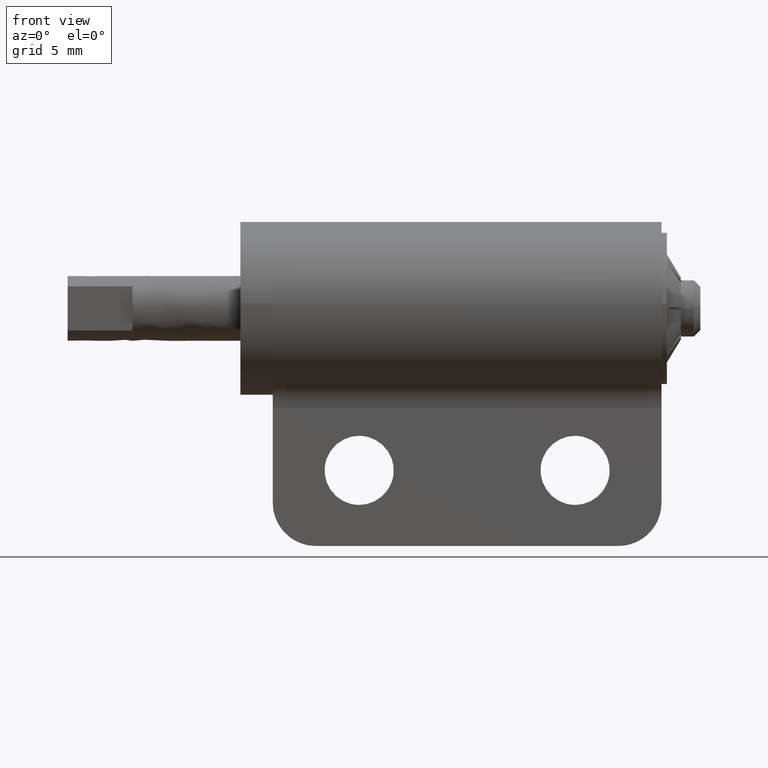
[diagram: clean part render]
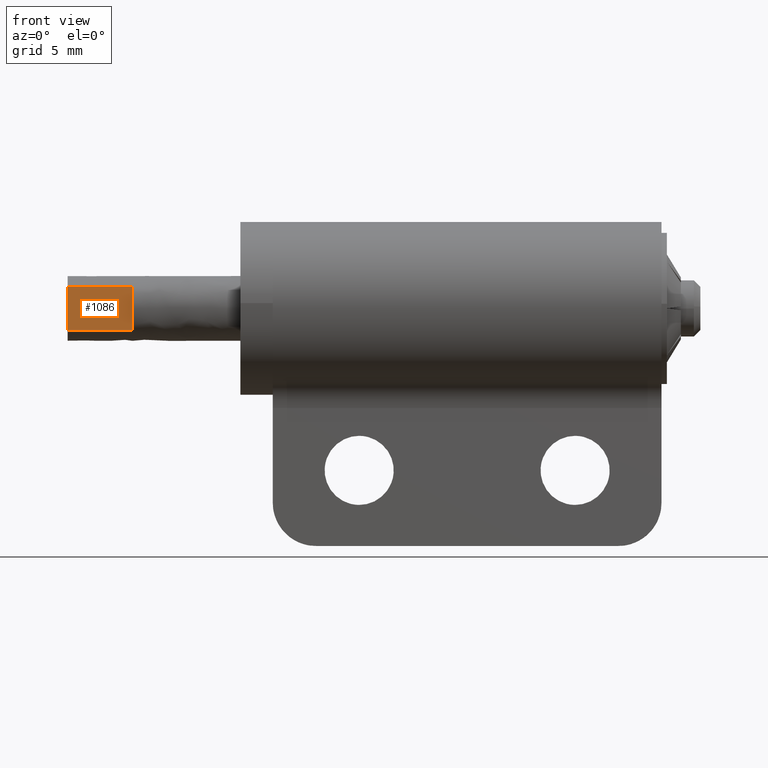
[diagram: same view with one face highlighted and labeled with its STEP entity id]
A machine part, front view. The second image highlights one B-rep face of the part: STEP entity #1086.
In plain terms, the highlighted face is a freeform B-spline surface patch.
Its self-contained STEP definition (entity closure, byte-faithful):
#624=CARTESIAN_POINT('',(3.0,-1.100000000000000,-1.019803902718562));
#625=VERTEX_POINT('',#624);
#641=CARTESIAN_POINT('',(0.0,-1.100000000000000,-1.019803902718562));
#642=VERTEX_POINT('',#641);
#643=CARTESIAN_POINT('',(3.0,-1.100000000000000,-1.019803902718562));
#644=CARTESIAN_POINT('',(0.0,-1.100000000000000,-1.019803902718562));
#645=QUASI_UNIFORM_CURVE('',1,(#643,#644),.UNSPECIFIED.,.F.,.U.);
#646=EDGE_CURVE('',#625,#642,#645,.T.);
#648=CARTESIAN_POINT('',(0.0,-1.100000000000000,1.019803902718562));
#649=VERTEX_POINT('',#648);
#663=CARTESIAN_POINT('',(3.0,-1.100000000000000,1.019803902718562));
#664=VERTEX_POINT('',#663);
#665=CARTESIAN_POINT('',(3.0,-1.100000000000000,1.019803902718562));
#666=CARTESIAN_POINT('',(0.0,-1.100000000000000,1.019803902718562));
#667=QUASI_UNIFORM_CURVE('',1,(#665,#666),.UNSPECIFIED.,.F.,.U.);
#668=EDGE_CURVE('',#664,#649,#667,.T.);
#1039=CARTESIAN_POINT('',(3.0,-1.100000000000000,-1.019803902718562));
#1040=CARTESIAN_POINT('',(3.0,-1.100000000000000,1.019803902718562));
#1041=QUASI_UNIFORM_CURVE('',1,(#1039,#1040),.UNSPECIFIED.,.F.,.U.);
#1042=EDGE_CURVE('',#625,#664,#1041,.T.);
#1071=CARTESIAN_POINT('',(-0.149849994185418,-1.100000000000000,1.121682289500612));
#1072=CARTESIAN_POINT('',(-0.149849994185418,-1.100000000000000,-1.121682362442671));
#1073=CARTESIAN_POINT('',(3.149850074651688,-1.100000000000000,1.121682289500612));
#1074=CARTESIAN_POINT('',(3.149850074651688,-1.100000000000000,-1.121682362442671));
#1075=B_SPLINE_SURFACE_WITH_KNOTS('',1,1,((#1071,#1073),(#1072,#1074)),.UNSPECIFIED.,.F.,.F.,.U.,(2,2),(2,2),(0.0,2.243364651943283),(0.0,3.299700068837106),.UNSPECIFIED.);
#1076=CARTESIAN_POINT('',(0.0,-1.100000000000000,-1.019803902718562));
#1077=CARTESIAN_POINT('',(0.0,-1.100000000000000,1.019803902718562));
#1078=QUASI_UNIFORM_CURVE('',1,(#1076,#1077),.UNSPECIFIED.,.F.,.U.);
#1079=EDGE_CURVE('',#642,#649,#1078,.T.);
#1080=ORIENTED_EDGE('',*,*,#1079,.F.);
#1081=ORIENTED_EDGE('',*,*,#646,.F.);
#1082=ORIENTED_EDGE('',*,*,#1042,.T.);
#1083=ORIENTED_EDGE('',*,*,#668,.T.);
#1084=EDGE_LOOP('',(#1080,#1081,#1082,#1083));
#1085=FACE_OUTER_BOUND('',#1084,.T.);
#1086=ADVANCED_FACE('',(#1085),#1075,.T.);